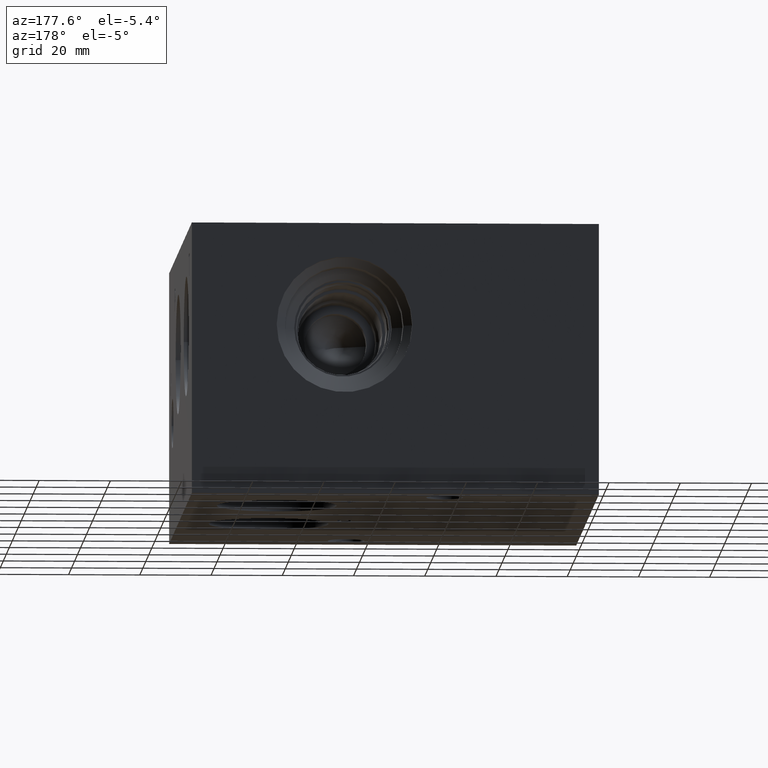
[diagram: clean part render]
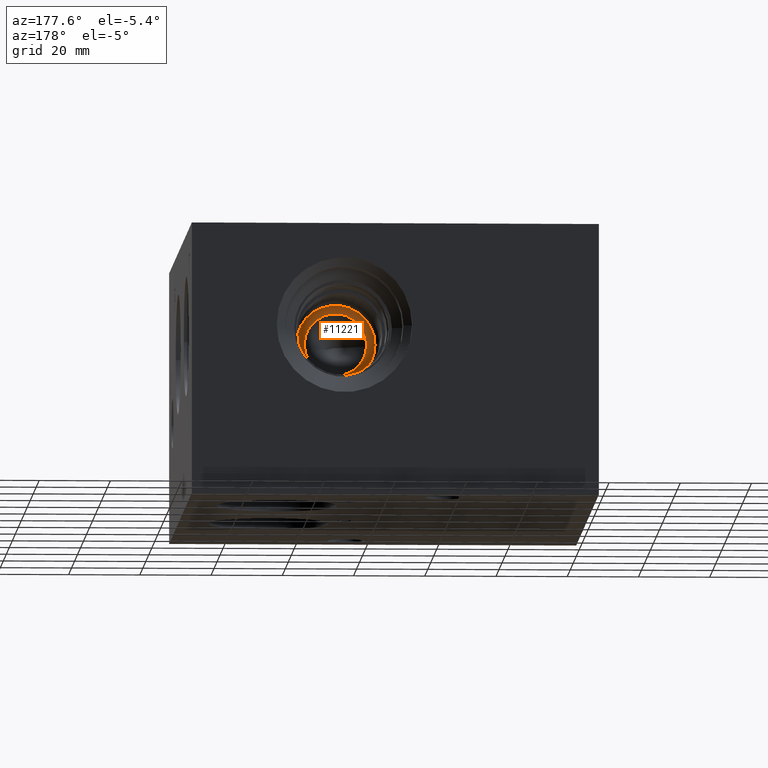
[diagram: same view with one face highlighted and labeled with its STEP entity id]
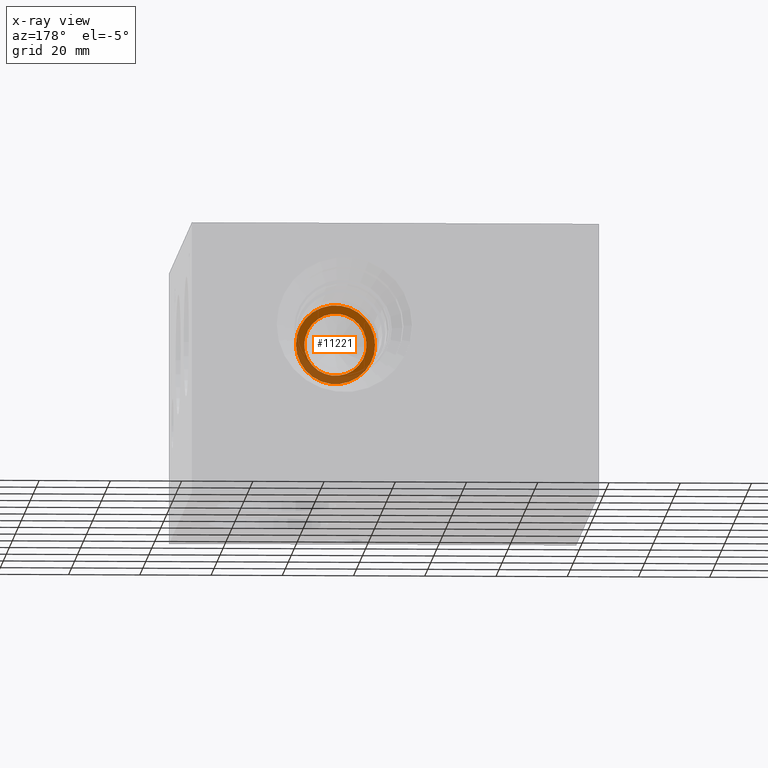
[diagram: x-ray of the same camera — body ghosted, the highlighted face saturated]
A machine part, auxiliary view. The second image highlights one B-rep face of the part: STEP entity #11221.
The next image is the same camera in x-ray: the body ghosted, the highlighted face saturated — about 35% of this face is hidden behind the body in this view.
In plain terms, the highlighted planar face has unit normal (0, -1, 0).
Its self-contained STEP definition (entity closure, byte-faithful):
#173=CIRCLE('',#11741,11.1125);
#174=CIRCLE('',#11742,11.1125);
#175=CIRCLE('',#11744,8.73760000000001);
#176=CIRCLE('',#11745,8.73760000000001);
#328=FACE_BOUND('',#1860,.T.);
#686=PLANE('',#11743);
#1220=FACE_OUTER_BOUND('',#1859,.T.);
#1859=EDGE_LOOP('',(#9801,#9802));
#1860=EDGE_LOOP('',(#9803,#9804));
#5342=VERTEX_POINT('',#19020);
#5343=VERTEX_POINT('',#19022);
#5344=VERTEX_POINT('',#19026);
#5345=VERTEX_POINT('',#19027);
#6864=EDGE_CURVE('',#5342,#5343,#173,.T.);
#6865=EDGE_CURVE('',#5343,#5342,#174,.T.);
#6866=EDGE_CURVE('',#5344,#5345,#175,.T.);
#6867=EDGE_CURVE('',#5345,#5344,#176,.T.);
#9801=ORIENTED_EDGE('',*,*,#6865,.F.);
#9802=ORIENTED_EDGE('',*,*,#6864,.F.);
#9803=ORIENTED_EDGE('',*,*,#6866,.T.);
#9804=ORIENTED_EDGE('',*,*,#6867,.T.);
#11221=ADVANCED_FACE('',(#1220,#328),#686,.F.);
#11741=AXIS2_PLACEMENT_3D('',#19023,#13819,#13820);
#11742=AXIS2_PLACEMENT_3D('',#19024,#13821,#13822);
#11743=AXIS2_PLACEMENT_3D('',#19025,#13823,#13824);
#11744=AXIS2_PLACEMENT_3D('',#19028,#13825,#13826);
#11745=AXIS2_PLACEMENT_3D('',#19029,#13827,#13828);
#13819=DIRECTION('center_axis',(0.,-1.,0.));
#13820=DIRECTION('ref_axis',(1.,0.,0.));
#13821=DIRECTION('center_axis',(0.,-1.,0.));
#13822=DIRECTION('ref_axis',(1.,0.,0.));
#13823=DIRECTION('center_axis',(0.,-1.,0.));
#13824=DIRECTION('ref_axis',(0.,0.,-1.));
#13825=DIRECTION('center_axis',(0.,-1.,0.));
#13826=DIRECTION('ref_axis',(1.,0.,0.));
#13827=DIRECTION('center_axis',(0.,-1.,0.));
#13828=DIRECTION('ref_axis',(1.,0.,0.));
#19020=CARTESIAN_POINT('',(60.3123,91.5924,47.625));
#19022=CARTESIAN_POINT('',(82.5373,91.5924,47.625));
#19023=CARTESIAN_POINT('Origin',(71.4248,91.5924,47.625));
#19024=CARTESIAN_POINT('Origin',(71.4248,91.5924,47.625));
#19025=CARTESIAN_POINT('Origin',(80.1624,91.5924,47.625));
#19026=CARTESIAN_POINT('',(80.1624,91.5924,47.625));
#19027=CARTESIAN_POINT('',(62.6872,91.5924,47.625));
#19028=CARTESIAN_POINT('Origin',(71.4248,91.5924,47.625));
#19029=CARTESIAN_POINT('Origin',(71.4248,91.5924,47.625));